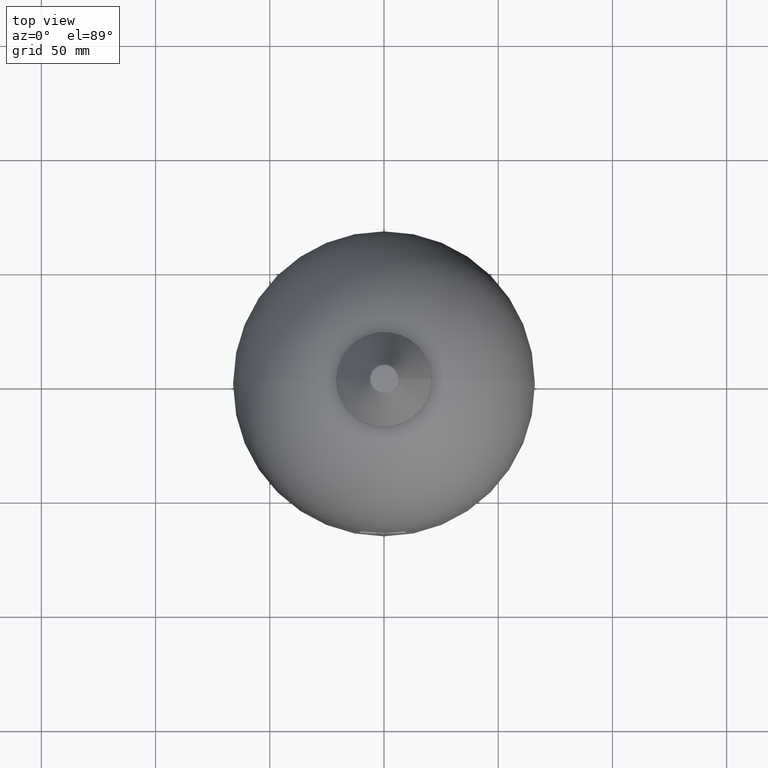
[diagram: clean part render]
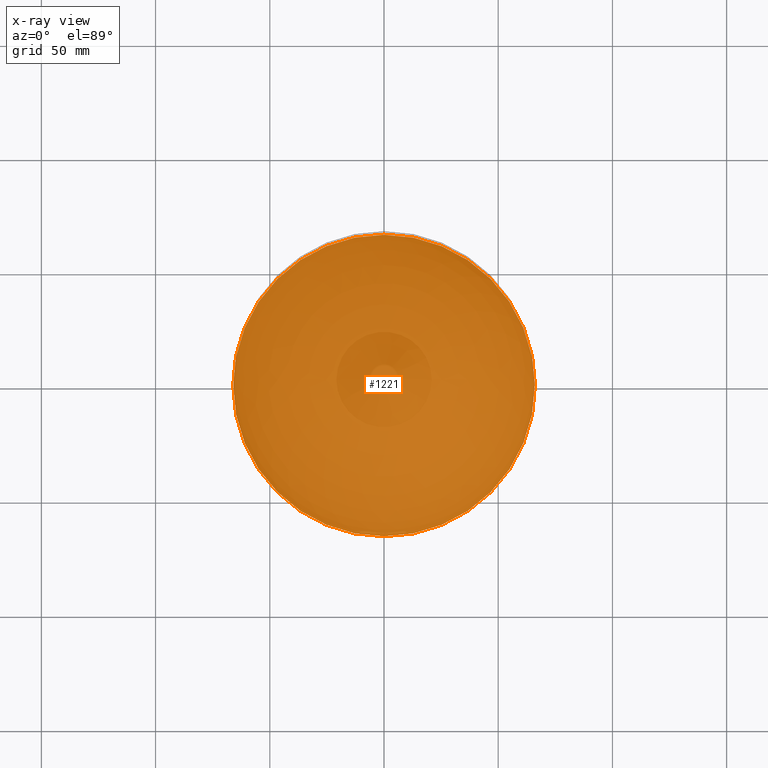
[diagram: x-ray — body ghosted, one internal face saturated and labeled with its STEP entity id]
A machine part, top view, then the same camera in x-ray: the body is ghosted and one INTERNAL B-rep face — a face not visible from any outside direction — is saturated and labeled: STEP entity #1221.
In plain terms, the highlighted planar face has unit normal (0, 0, -1).
Its self-contained STEP definition (entity closure, byte-faithful):
#1145=CARTESIAN_POINT('',(65.999999999999957,0.0,80.499999999999957));
#1146=VERTEX_POINT('',#1145);
#1162=CARTESIAN_POINT('',(-65.999999999999972,-8.082402E-015,80.499999999999957));
#1163=VERTEX_POINT('',#1162);
#1170=CARTESIAN_POINT('',(0.0,0.0,80.499999999999957));
#1171=DIRECTION('',(0.0,0.0,1.0));
#1172=DIRECTION('',(1.0,0.0,0.0));
#1173=AXIS2_PLACEMENT_3D('',#1170,#1171,#1172);
#1174=CIRCLE('',#1173,65.999999999999957);
#1175=EDGE_CURVE('',#1163,#1146,#1174,.T.);
#1206=CARTESIAN_POINT('',(32.999999999999979,0.0,80.499999999999972));
#1207=DIRECTION('',(0.0,0.0,-1.0));
#1208=DIRECTION('',(-1.0,0.0,0.0));
#1209=AXIS2_PLACEMENT_3D('',#1206,#1207,#1208);
#1210=PLANE('',#1209);
#1211=CARTESIAN_POINT('',(0.0,0.0,80.499999999999957));
#1212=DIRECTION('',(0.0,0.0,1.0));
#1213=DIRECTION('',(1.0,0.0,0.0));
#1214=AXIS2_PLACEMENT_3D('',#1211,#1212,#1213);
#1215=CIRCLE('',#1214,65.999999999999957);
#1216=EDGE_CURVE('',#1146,#1163,#1215,.T.);
#1217=ORIENTED_EDGE('',*,*,#1216,.F.);
#1218=ORIENTED_EDGE('',*,*,#1175,.F.);
#1219=EDGE_LOOP('',(#1217,#1218));
#1220=FACE_OUTER_BOUND('',#1219,.T.);
#1221=ADVANCED_FACE('',(#1220),#1210,.T.);